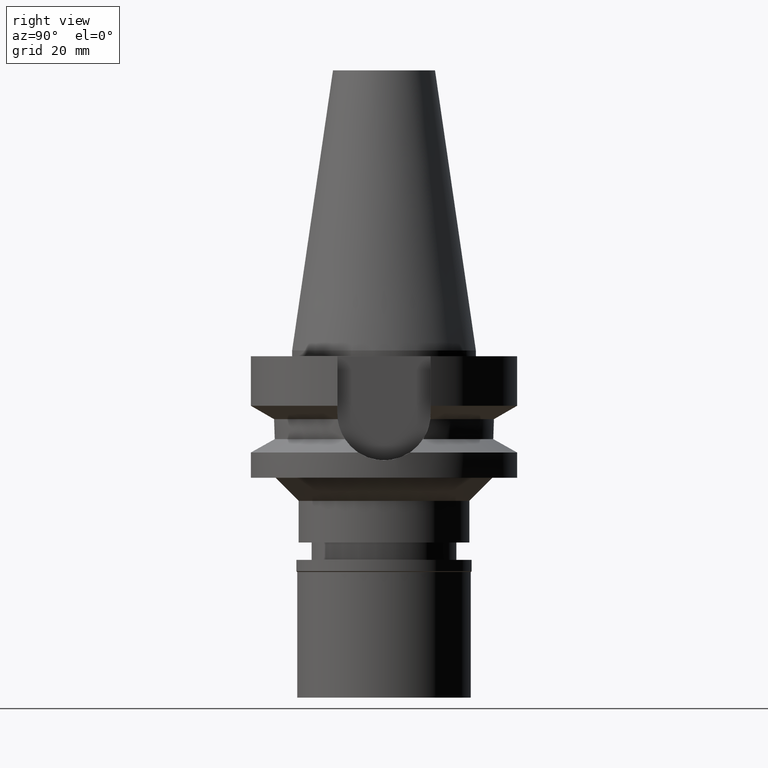
[diagram: clean part render]
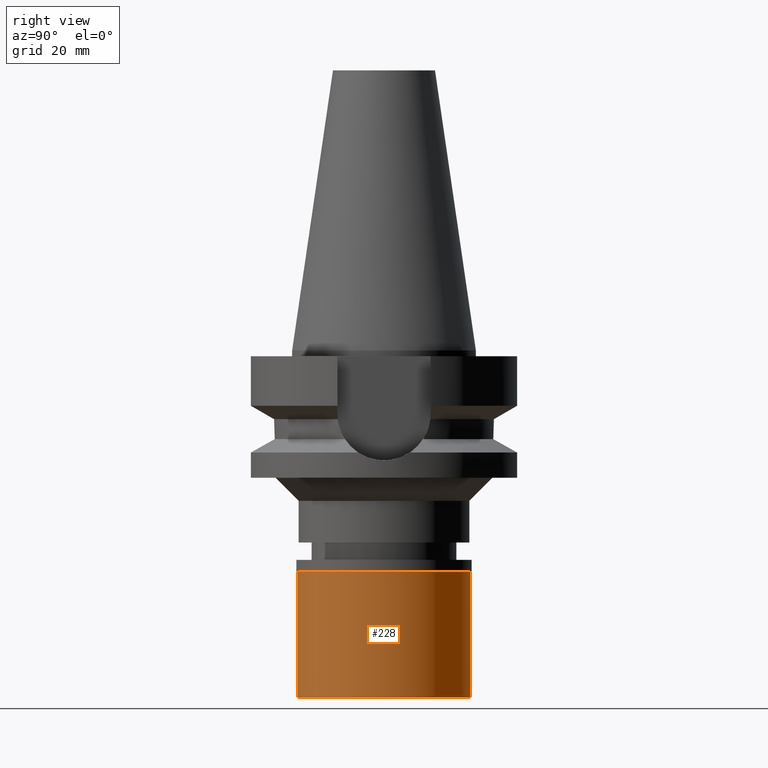
[diagram: same view with one face highlighted and labeled with its STEP entity id]
A machine part, right view. The second image highlights one B-rep face of the part: STEP entity #228.
In plain terms, the highlighted cylindrical surface (partial cylindrical patch) has radius 15 mm, axis along (0, 0, -1).
Its self-contained STEP definition (entity closure, byte-faithful):
#111 = CIRCLE ( 'NONE', #1965, 15.00000000000000000 ) ;
#149 = DIRECTION ( 'NONE',  ( 0.0000000000000000000, 1.000000000000000000, 0.0000000000000000000 ) ) ;
#151 = VERTEX_POINT ( 'NONE', #1088 ) ;
#228 = ADVANCED_FACE ( 'NONE', ( #658 ), #1118, .T. ) ;
#288 = EDGE_CURVE ( 'NONE', #1632, #998, #2085, .T. ) ;
#514 = DIRECTION ( 'NONE',  ( 0.0000000000000000000, 0.0000000000000000000, -1.000000000000000000 ) ) ;
#650 = VERTEX_POINT ( 'NONE', #2004 ) ;
#658 = FACE_OUTER_BOUND ( 'NONE', #1955, .T. ) ;
#676 = ORIENTED_EDGE ( 'NONE', *, *, #1953, .T. ) ;
#874 = CIRCLE ( 'NONE', #2598, 15.00000000000000000 ) ;
#998 = VERTEX_POINT ( 'NONE', #2672 ) ;
#1088 = CARTESIAN_POINT ( 'NONE',  ( 0.0000000000000000000, -15.00000000000000000, -23.80000000000000071 ) ) ;
#1118 = CYLINDRICAL_SURFACE ( 'NONE', #1490, 15.00000000000000000 ) ;
#1174 = DIRECTION ( 'NONE',  ( 0.0000000000000000000, 0.0000000000000000000, 1.000000000000000000 ) ) ;
#1266 = VECTOR ( 'NONE', #1386, 1000.000000000000000 ) ;
#1334 = EDGE_CURVE ( 'NONE', #151, #998, #874, .T. ) ;
#1386 = DIRECTION ( 'NONE',  ( 0.0000000000000000000, 0.0000000000000000000, -1.000000000000000000 ) ) ;
#1419 = CARTESIAN_POINT ( 'NONE',  ( 0.0000000000000000000, -15.00000000000000000, -2.100000000000000089 ) ) ;
#1490 = AXIS2_PLACEMENT_3D ( 'NONE', #1607, #2732, #2917 ) ;
#1607 = CARTESIAN_POINT ( 'NONE',  ( 0.0000000000000000000, 0.0000000000000000000, 0.0000000000000000000 ) ) ;
#1632 = VERTEX_POINT ( 'NONE', #2802 ) ;
#1685 = VECTOR ( 'NONE', #514, 1000.000000000000000 ) ;
#1714 = ORIENTED_EDGE ( 'NONE', *, *, #2793, .T. ) ;
#1953 = EDGE_CURVE ( 'NONE', #650, #151, #2557, .T. ) ;
#1955 = EDGE_LOOP ( 'NONE', ( #1714, #676, #2626, #2391 ) ) ;
#1965 = AXIS2_PLACEMENT_3D ( 'NONE', #2899, #2395, #149 ) ;
#2004 = CARTESIAN_POINT ( 'NONE',  ( 0.0000000000000000000, -15.00000000000000000, -2.100000000000000089 ) ) ;
#2081 = DIRECTION ( 'NONE',  ( 0.0000000000000000000, -1.000000000000000000, 0.0000000000000000000 ) ) ;
#2085 = LINE ( 'NONE', #2815, #1685 ) ;
#2381 = CARTESIAN_POINT ( 'NONE',  ( 0.0000000000000000000, 0.0000000000000000000, -23.80000000000000071 ) ) ;
#2391 = ORIENTED_EDGE ( 'NONE', *, *, #288, .F. ) ;
#2395 = DIRECTION ( 'NONE',  ( 0.0000000000000000000, 0.0000000000000000000, -1.000000000000000000 ) ) ;
#2557 = LINE ( 'NONE', #1419, #1266 ) ;
#2598 = AXIS2_PLACEMENT_3D ( 'NONE', #2381, #1174, #2081 ) ;
#2626 = ORIENTED_EDGE ( 'NONE', *, *, #1334, .T. ) ;
#2672 = CARTESIAN_POINT ( 'NONE',  ( 0.0000000000000000000, 15.00000000000000000, -23.80000000000000071 ) ) ;
#2732 = DIRECTION ( 'NONE',  ( 0.0000000000000000000, 0.0000000000000000000, -1.000000000000000000 ) ) ;
#2793 = EDGE_CURVE ( 'NONE', #1632, #650, #111, .T. ) ;
#2802 = CARTESIAN_POINT ( 'NONE',  ( 0.0000000000000000000, 15.00000000000000000, -2.100000000000000089 ) ) ;
#2815 = CARTESIAN_POINT ( 'NONE',  ( 0.0000000000000000000, 15.00000000000000000, -2.100000000000000089 ) ) ;
#2899 = CARTESIAN_POINT ( 'NONE',  ( 0.0000000000000000000, 0.0000000000000000000, -2.100000000000000089 ) ) ;
#2917 = DIRECTION ( 'NONE',  ( 0.0000000000000000000, -1.000000000000000000, 0.0000000000000000000 ) ) ;